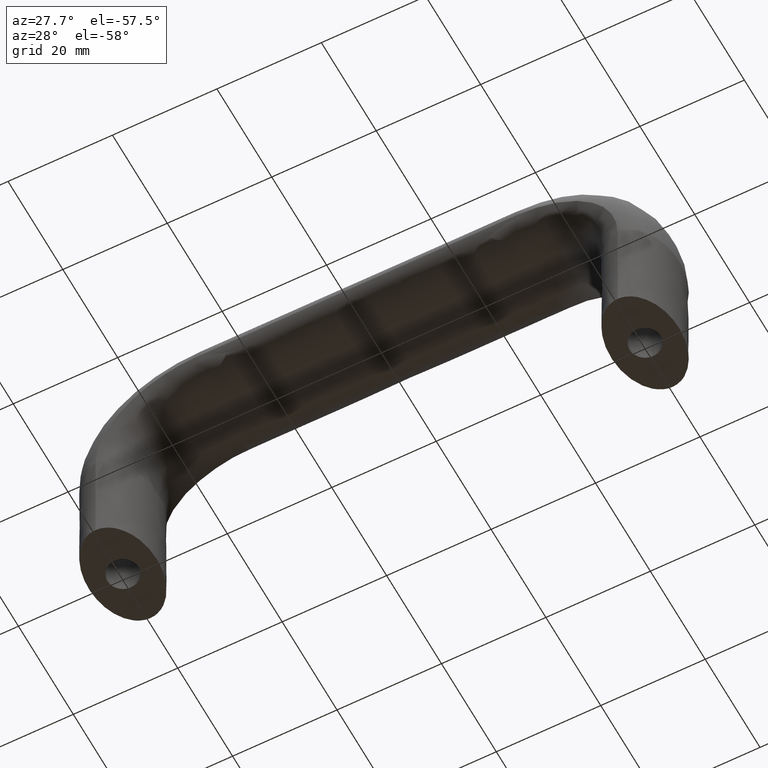
[diagram: clean part render]
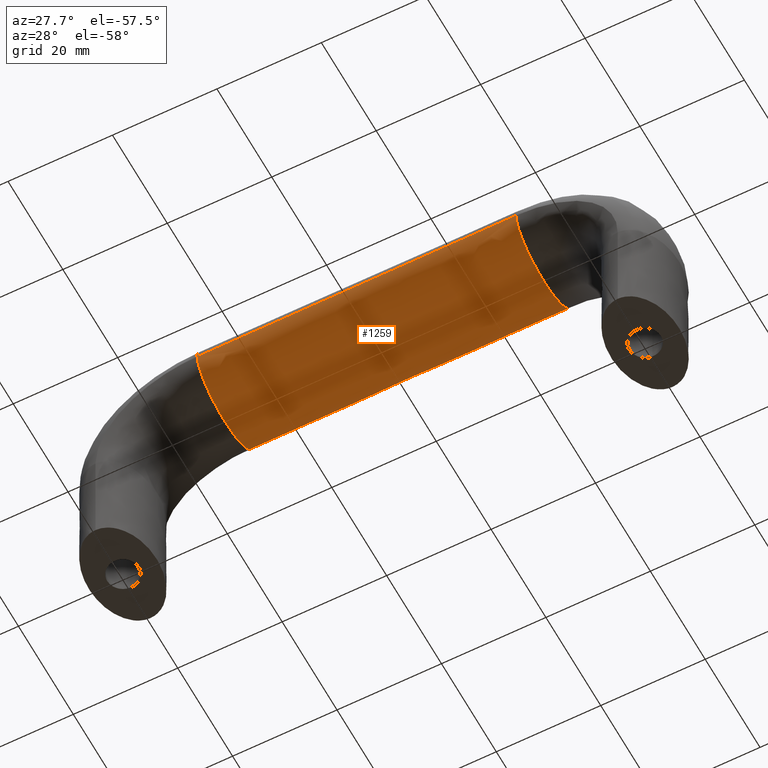
[diagram: same view with one face highlighted and labeled with its STEP entity id]
A machine part, auxiliary view. The second image highlights one B-rep face of the part: STEP entity #1259.
In plain terms, the highlighted face is a freeform B-spline surface patch.
Its self-contained STEP definition (entity closure, byte-faithful):
#750=CARTESIAN_POINT('',(80.500006999999997,8.755444309278111,37.370789168315817));
#751=VERTEX_POINT('',#750);
#765=CARTESIAN_POINT('',(80.500006999999997,10.0,40.500007999999831));
#766=VERTEX_POINT('',#765);
#767=CARTESIAN_POINT('',(80.500006999999997,8.755444309278111,37.370789168315817));
#768=CARTESIAN_POINT('',(80.500006999999997,9.558561397071312,38.326128189762443));
#769=CARTESIAN_POINT('',(80.500006999999997,10.0,39.410922043959332));
#770=CARTESIAN_POINT('',(80.500006999999997,10.0,40.500007999999831));
#771=B_SPLINE_CURVE_WITH_KNOTS('',3,(#767,#768,#769,#770),.UNSPECIFIED.,.F.,.U.,(4,4),(0.419999999989626,0.500000000000000),.UNSPECIFIED.);
#772=EDGE_CURVE('',#751,#766,#771,.T.);
#774=CARTESIAN_POINT('',(80.500006999999997,9.039509780698346,43.265142615306893));
#775=VERTEX_POINT('',#774);
#776=CARTESIAN_POINT('',(80.500006999999997,10.0,40.500007999999831));
#777=CARTESIAN_POINT('',(80.500006999999997,10.0,41.452955137659607));
#778=CARTESIAN_POINT('',(80.500006999999997,9.662025750010745,42.402616156045127));
#779=CARTESIAN_POINT('',(80.500006999999997,9.039509780698346,43.265142615306893));
#780=B_SPLINE_CURVE_WITH_KNOTS('',3,(#776,#777,#778,#779),.UNSPECIFIED.,.F.,.U.,(4,4),(0.500000000000000,0.569999774214178),.UNSPECIFIED.);
#781=EDGE_CURVE('',#766,#775,#780,.T.);
#783=CARTESIAN_POINT('',(80.500006999999997,-10.0,40.500007999999831));
#784=VERTEX_POINT('',#783);
#899=CARTESIAN_POINT('',(80.500006999999997,-10.0,40.500007999999831));
#900=CARTESIAN_POINT('',(80.500006999999997,-10.0,38.798311193907203));
#901=CARTESIAN_POINT('',(80.500006999999997,-8.922269036098131,37.107093152078512));
#902=CARTESIAN_POINT('',(80.500006999999997,-5.219866587632820,34.700530449855350));
#903=CARTESIAN_POINT('',(80.500006999999997,-2.617993877991495,34.000004999999852));
#904=CARTESIAN_POINT('',(80.500006999999997,2.617993877991495,34.000004999999852));
#905=CARTESIAN_POINT('',(80.500006999999997,5.219866587632830,34.700530449855350));
#906=CARTESIAN_POINT('',(80.500006999999997,7.737500252435606,36.336993087267238));
#907=CARTESIAN_POINT('',(80.500006999999997,8.303690947313079,36.833410968655329));
#908=CARTESIAN_POINT('',(80.500006999999997,8.755444309278111,37.370789168315817));
#909=B_SPLINE_CURVE_WITH_KNOTS('',3,(#899,#900,#901,#902,#903,#904,#905,#906,#907,#908),.UNSPECIFIED.,.F.,.U.,(4,2,2,2,4),(0.0,0.125000000000000,0.250000000000000,0.375000000000000,0.419999999989626),.UNSPECIFIED.);
#910=EDGE_CURVE('',#784,#751,#909,.T.);
#998=CARTESIAN_POINT('',(19.500000000000000,9.039509780698342,43.265134615307048));
#999=VERTEX_POINT('',#998);
#1000=CARTESIAN_POINT('',(19.500000000000000,9.039509780698342,43.265134615307048));
#1001=CARTESIAN_POINT('',(22.041631149356210,9.039509780698342,43.274675412277858));
#1002=CARTESIAN_POINT('',(24.583333916670899,9.039509780698342,43.265142615306893));
#1003=CARTESIAN_POINT('',(29.666667833329100,9.039509780698342,43.265142615306893));
#1004=CARTESIAN_POINT('',(32.208334791662097,9.039509780698342,43.265142615306893));
#1005=CARTESIAN_POINT('',(39.833335666675787,9.039509780698344,43.265142615306893));
#1006=CARTESIAN_POINT('',(44.916669583312100,9.039509780698344,43.265142615306893));
#1007=CARTESIAN_POINT('',(55.083337416687897,9.039509780698344,43.265142615306893));
#1008=CARTESIAN_POINT('',(60.166671333370502,9.039509780698344,43.265142615306893));
#1009=CARTESIAN_POINT('',(67.791672208314694,9.039509780698346,43.265142615306893));
#1010=CARTESIAN_POINT('',(70.333339166650006,9.039509780698346,43.265142615306893));
#1011=CARTESIAN_POINT('',(75.416673083349991,9.039509780698346,43.265142615306893));
#1012=CARTESIAN_POINT('',(77.958375904355847,9.039509780698346,43.274683412075753));
#1013=CARTESIAN_POINT('',(80.500006999999997,9.039509780698346,43.265142615306893));
#1014=B_SPLINE_CURVE_WITH_KNOTS('',3,(#1000,#1001,#1002,#1003,#1004,#1005,#1006,#1007,#1008,#1009,#1010,#1011,#1012,#1013),.UNSPECIFIED.,.F.,.U.,(4,2,2,2,2,2,4),(0.314319944090048,0.360739958067536,0.407159972045024,0.500000000000000,0.592840027954976,0.639260041932464,0.685680055909952),.UNSPECIFIED.);
#1015=EDGE_CURVE('',#999,#775,#1014,.T.);
#1017=CARTESIAN_POINT('',(19.500000000000000,-10.0,40.499999999999972));
#1018=VERTEX_POINT('',#1017);
#1032=CARTESIAN_POINT('',(19.500000000000000,-10.0,40.499999999999972));
#1033=CARTESIAN_POINT('',(22.041625856253820,-10.0,40.510218419205927));
#1034=CARTESIAN_POINT('',(24.583333916670899,-10.0,40.500007999999831));
#1035=CARTESIAN_POINT('',(29.666667833329100,-10.0,40.500007999999831));
#1036=CARTESIAN_POINT('',(32.208334791662097,-10.0,40.500007999999831));
#1037=CARTESIAN_POINT('',(39.833335666675787,-10.0,40.500007999999831));
#1038=CARTESIAN_POINT('',(44.916669583312100,-10.0,40.500007999999831));
#1039=CARTESIAN_POINT('',(55.083337416687897,-10.0,40.500007999999831));
#1040=CARTESIAN_POINT('',(60.166671333370502,-10.0,40.500007999999831));
#1041=CARTESIAN_POINT('',(67.791672208314694,-10.0,40.500007999999831));
#1042=CARTESIAN_POINT('',(70.333339166650006,-10.0,40.500007999999831));
#1043=CARTESIAN_POINT('',(75.416673083349991,-10.0,40.500007999999831));
#1044=CARTESIAN_POINT('',(77.958381201274108,-10.0,40.510226418973978));
#1045=CARTESIAN_POINT('',(80.500006999999997,-10.0,40.500007999999831));
#1046=B_SPLINE_CURVE_WITH_KNOTS('',3,(#1032,#1033,#1034,#1035,#1036,#1037,#1038,#1039,#1040,#1041,#1042,#1043,#1044,#1045),.UNSPECIFIED.,.F.,.U.,(4,2,2,2,2,2,4),(0.314319944090048,0.360739958067536,0.407159972045024,0.500000000000000,0.592840027954976,0.639260041932464,0.685680055909952),.UNSPECIFIED.);
#1047=EDGE_CURVE('',#1018,#784,#1046,.T.);
#1052=CARTESIAN_POINT('',(19.500000000000000,-10.0,40.499999999999972));
#1053=CARTESIAN_POINT('',(19.500000000000000,-10.0,38.798303193907351));
#1054=CARTESIAN_POINT('',(19.500000000000000,-8.922269036098131,37.107085152078703));
#1055=CARTESIAN_POINT('',(19.500000000000000,-5.219866587632820,34.700522449855512));
#1056=CARTESIAN_POINT('',(19.500000000000000,-2.617993877991495,33.999997000000000));
#1057=CARTESIAN_POINT('',(19.500000000000000,2.617993877991495,33.999997000000000));
#1058=CARTESIAN_POINT('',(19.500000000000000,5.219866587632830,34.700522449855512));
#1059=CARTESIAN_POINT('',(19.500000000000000,8.922269036098131,37.107085152078703));
#1060=CARTESIAN_POINT('',(19.500000000000000,10.0,38.798303193907351));
#1061=CARTESIAN_POINT('',(19.500000000000000,10.0,41.452950211411853));
#1062=CARTESIAN_POINT('',(19.500000000000000,9.662023569720375,42.402614282350541));
#1063=CARTESIAN_POINT('',(19.500000000000000,9.039503756879462,43.265142961604063));
#1064=CARTESIAN_POINT('',(22.041625856253820,-10.0,40.510218419205927));
#1065=CARTESIAN_POINT('',(22.041622296553701,-10.0,38.808964618051597));
#1066=CARTESIAN_POINT('',(22.041617977505549,-8.922269036098131,37.118249843992949));
#1067=CARTESIAN_POINT('',(22.041610659084348,-5.219866587632820,34.712491663684297));
#1068=CARTESIAN_POINT('',(22.041608217988049,-2.617993877991495,34.012222789342303));
#1069=CARTESIAN_POINT('',(22.041608217988149,2.617993877991495,34.012222789331737));
#1070=CARTESIAN_POINT('',(22.041610659084348,5.219866587632830,34.712491663684297));
#1071=CARTESIAN_POINT('',(22.041617977505549,8.922269036098131,37.118249843992949));
#1072=CARTESIAN_POINT('',(22.041622296553751,10.0,38.808964618042353));
#1073=CARTESIAN_POINT('',(22.041627849685948,10.0,41.462920547843723));
#1074=CARTESIAN_POINT('',(22.041629642054009,9.662023569720375,42.412353983593583));
#1075=CARTESIAN_POINT('',(22.041631149356210,9.039503756879462,43.274683758574866));
#1076=CARTESIAN_POINT('',(24.583333916670899,-10.0,40.500007999999831));
#1077=CARTESIAN_POINT('',(24.583333916670899,-10.0,38.798311193907203));
#1078=CARTESIAN_POINT('',(24.583333916670899,-8.922269036098131,37.107093152078512));
#1079=CARTESIAN_POINT('',(24.583333916670899,-5.219866587632820,34.700530449855350));
#1080=CARTESIAN_POINT('',(24.583333916670899,-2.617993877991495,34.000004999999852));
#1081=CARTESIAN_POINT('',(24.583333916670899,2.617993877991495,34.000004999999852));
#1082=CARTESIAN_POINT('',(24.583333916670899,5.219866587632830,34.700530449855350));
#1083=CARTESIAN_POINT('',(24.583333916670899,8.922269036098131,37.107093152078512));
#1084=CARTESIAN_POINT('',(24.583333916670899,10.0,38.798311193907203));
#1085=CARTESIAN_POINT('',(24.583333916670899,10.0,41.452958211411698));
#1086=CARTESIAN_POINT('',(24.583333916670899,9.662023569720375,42.402622282350379));
#1087=CARTESIAN_POINT('',(24.583333916670899,9.039503756879462,43.265150961603887));
#1088=CARTESIAN_POINT('',(29.666667833329100,-10.0,40.500007999999831));
#1089=CARTESIAN_POINT('',(29.666667833329100,-10.0,38.798311193907203));
#1090=CARTESIAN_POINT('',(29.666667833329100,-8.922269036098131,37.107093152078512));
#1091=CARTESIAN_POINT('',(29.666667833329100,-5.219866587632820,34.700530449855350));
#1092=CARTESIAN_POINT('',(29.666667833329100,-2.617993877991495,34.000004999999852));
#1093=CARTESIAN_POINT('',(29.666667833329100,2.617993877991495,34.000004999999852));
#1094=CARTESIAN_POINT('',(29.666667833329100,5.219866587632830,34.700530449855350));
#1095=CARTESIAN_POINT('',(29.666667833329100,8.922269036098131,37.107093152078512));
#1096=CARTESIAN_POINT('',(29.666667833329100,10.0,38.798311193907203));
#1097=CARTESIAN_POINT('',(29.666667833329100,10.0,41.452958211411698));
#1098=CARTESIAN_POINT('',(29.666667833329100,9.662023569720375,42.402622282350379));
#1099=CARTESIAN_POINT('',(29.666667833329100,9.039503756879462,43.265150961603887));
#1100=CARTESIAN_POINT('',(32.208334791662097,-10.0,40.500007999999831));
#1101=CARTESIAN_POINT('',(32.208334791662097,-10.0,38.798311193907203));
#1102=CARTESIAN_POINT('',(32.208334791662097,-8.922269036098131,37.107093152078512));
#1103=CARTESIAN_POINT('',(32.208334791662097,-5.219866587632820,34.700530449855350));
#1104=CARTESIAN_POINT('',(32.208334791662097,-2.617993877991495,34.000004999999852));
#1105=CARTESIAN_POINT('',(32.208334791662097,2.617993877991495,34.000004999999852));
#1106=CARTESIAN_POINT('',(32.208334791662097,5.219866587632830,34.700530449855350));
#1107=CARTESIAN_POINT('',(32.208334791662097,8.922269036098131,37.107093152078512));
#1108=CARTESIAN_POINT('',(32.208334791662097,10.0,38.798311193907203));
#1109=CARTESIAN_POINT('',(32.208334791662097,10.0,41.452958211411698));
#1110=CARTESIAN_POINT('',(32.208334791662097,9.662023569720375,42.402622282350379));
#1111=CARTESIAN_POINT('',(32.208334791662097,9.039503756879462,43.265150961603887));
#1112=CARTESIAN_POINT('',(39.833335666675787,-10.0,40.500007999999831));
#1113=CARTESIAN_POINT('',(39.833335666675787,-10.0,38.798311193907203));
#1114=CARTESIAN_POINT('',(39.833335666675787,-8.922269036098131,37.107093152078512));
#1115=CARTESIAN_POINT('',(39.833335666675787,-5.219866587632820,34.700530449855350));
#1116=CARTESIAN_POINT('',(39.833335666675787,-2.617993877991495,34.000004999999852));
#1117=CARTESIAN_POINT('',(39.833335666675787,2.617993877991495,34.000004999999852));
#1118=CARTESIAN_POINT('',(39.833335666675787,5.219866587632830,34.700530449855350));
#1119=CARTESIAN_POINT('',(39.833335666675787,8.922269036098131,37.107093152078512));
#1120=CARTESIAN_POINT('',(39.833335666675787,10.0,38.798311193907203));
#1121=CARTESIAN_POINT('',(39.833335666675787,10.0,41.452958211411698));
#1122=CARTESIAN_POINT('',(39.833335666675787,9.662023569720375,42.402622282350379));
#1123=CARTESIAN_POINT('',(39.833335666675787,9.039503756879462,43.265150961603887));
#1124=CARTESIAN_POINT('',(44.916669583312100,-10.0,40.500007999999831));
#1125=CARTESIAN_POINT('',(44.916669583312100,-10.0,38.798311193907203));
#1126=CARTESIAN_POINT('',(44.916669583312100,-8.922269036098131,37.107093152078512));
#1127=CARTESIAN_POINT('',(44.916669583312100,-5.219866587632820,34.700530449855350));
#1128=CARTESIAN_POINT('',(44.916669583312100,-2.617993877991495,34.000004999999852));
#1129=CARTESIAN_POINT('',(44.916669583312100,2.617993877991495,34.000004999999852));
#1130=CARTESIAN_POINT('',(44.916669583312100,5.219866587632830,34.700530449855350));
#1131=CARTESIAN_POINT('',(44.916669583312100,8.922269036098131,37.107093152078512));
#1132=CARTESIAN_POINT('',(44.916669583312100,10.0,38.798311193907203));
#1133=CARTESIAN_POINT('',(44.916669583312100,10.0,41.452958211411698));
#1134=CARTESIAN_POINT('',(44.916669583312100,9.662023569720375,42.402622282350379));
#1135=CARTESIAN_POINT('',(44.916669583312100,9.039503756879462,43.265150961603887));
#1136=CARTESIAN_POINT('',(55.083337416687897,-10.0,40.500007999999831));
#1137=CARTESIAN_POINT('',(55.083337416687897,-10.0,38.798311193907203));
#1138=CARTESIAN_POINT('',(55.083337416687897,-8.922269036098131,37.107093152078512));
#1139=CARTESIAN_POINT('',(55.083337416687897,-5.219866587632820,34.700530449855350));
#1140=CARTESIAN_POINT('',(55.083337416687897,-2.617993877991495,34.000004999999852));
#1141=CARTESIAN_POINT('',(55.083337416687897,2.617993877991495,34.000004999999852));
#1142=CARTESIAN_POINT('',(55.083337416687897,5.219866587632830,34.700530449855350));
#1143=CARTESIAN_POINT('',(55.083337416687897,8.922269036098131,37.107093152078512));
#1144=CARTESIAN_POINT('',(55.083337416687897,10.0,38.798311193907203));
#1145=CARTESIAN_POINT('',(55.083337416687897,10.0,41.452958211411698));
#1146=CARTESIAN_POINT('',(55.083337416687897,9.662023569720375,42.402622282350379));
#1147=CARTESIAN_POINT('',(55.083337416687897,9.039503756879462,43.265150961603887));
#1148=CARTESIAN_POINT('',(60.166671333370502,-10.0,40.500007999999831));
#1149=CARTESIAN_POINT('',(60.166671333370502,-10.0,38.798311193907203));
#1150=CARTESIAN_POINT('',(60.166671333370502,-8.922269036098131,37.107093152078512));
#1151=CARTESIAN_POINT('',(60.166671333370502,-5.219866587632820,34.700530449855350));
#1152=CARTESIAN_POINT('',(60.166671333370502,-2.617993877991495,34.000004999999852));
#1153=CARTESIAN_POINT('',(60.166671333370502,2.617993877991495,34.000004999999852));
#1154=CARTESIAN_POINT('',(60.166671333370502,5.219866587632830,34.700530449855350));
#1155=CARTESIAN_POINT('',(60.166671333370502,8.922269036098131,37.107093152078512));
#1156=CARTESIAN_POINT('',(60.166671333370502,10.0,38.798311193907203));
#1157=CARTESIAN_POINT('',(60.166671333370502,10.0,41.452958211411698));
#1158=CARTESIAN_POINT('',(60.166671333370502,9.662023569720375,42.402622282350379));
#1159=CARTESIAN_POINT('',(60.166671333370502,9.039503756879462,43.265150961603887));
#1160=CARTESIAN_POINT('',(67.791672208314694,-10.0,40.500007999999831));
#1161=CARTESIAN_POINT('',(67.791672208314694,-10.0,38.798311193907203));
#1162=CARTESIAN_POINT('',(67.791672208314694,-8.922269036098131,37.107093152078512));
#1163=CARTESIAN_POINT('',(67.791672208314694,-5.219866587632820,34.700530449855350));
#1164=CARTESIAN_POINT('',(67.791672208314694,-2.617993877991495,34.000004999999852));
#1165=CARTESIAN_POINT('',(67.791672208314694,2.617993877991495,34.000004999999852));
#1166=CARTESIAN_POINT('',(67.791672208314694,5.219866587632830,34.700530449855350));
#1167=CARTESIAN_POINT('',(67.791672208314694,8.922269036098131,37.107093152078512));
#1168=CARTESIAN_POINT('',(67.791672208314694,10.0,38.798311193907203));
#1169=CARTESIAN_POINT('',(67.791672208314694,10.0,41.452958211411698));
#1170=CARTESIAN_POINT('',(67.791672208314694,9.662023569720375,42.402622282350379));
#1171=CARTESIAN_POINT('',(67.791672208314694,9.039503756879462,43.265150961603887));
#1172=CARTESIAN_POINT('',(70.333339166650006,-10.0,40.500007999999831));
#1173=CARTESIAN_POINT('',(70.333339166650006,-10.0,38.798311193907203));
#1174=CARTESIAN_POINT('',(70.333339166650006,-8.922269036098131,37.107093152078512));
#1175=CARTESIAN_POINT('',(70.333339166650006,-5.219866587632820,34.700530449855350));
#1176=CARTESIAN_POINT('',(70.333339166650006,-2.617993877991495,34.000004999999852));
#1177=CARTESIAN_POINT('',(70.333339166650006,2.617993877991495,34.000004999999852));
#1178=CARTESIAN_POINT('',(70.333339166650006,5.219866587632830,34.700530449855350));
#1179=CARTESIAN_POINT('',(70.333339166650006,8.922269036098131,37.107093152078512));
#1180=CARTESIAN_POINT('',(70.333339166650006,10.0,38.798311193907203));
#1181=CARTESIAN_POINT('',(70.333339166650006,10.0,41.452958211411698));
#1182=CARTESIAN_POINT('',(70.333339166650006,9.662023569720375,42.402622282350379));
#1183=CARTESIAN_POINT('',(70.333339166650006,9.039503756879462,43.265150961603887));
#1184=CARTESIAN_POINT('',(75.416673083349991,-10.0,40.500007999999831));
#1185=CARTESIAN_POINT('',(75.416673083349991,-10.0,38.798311193907203));
#1186=CARTESIAN_POINT('',(75.416673083349991,-8.922269036098131,37.107093152078512));
#1187=CARTESIAN_POINT('',(75.416673083349991,-5.219866587632820,34.700530449855350));
#1188=CARTESIAN_POINT('',(75.416673083349991,-2.617993877991495,34.000004999999852));
#1189=CARTESIAN_POINT('',(75.416673083349991,2.617993877991495,34.000004999999852));
#1190=CARTESIAN_POINT('',(75.416673083349991,5.219866587632830,34.700530449855350));
#1191=CARTESIAN_POINT('',(75.416673083349991,8.922269036098131,37.107093152078512));
#1192=CARTESIAN_POINT('',(75.416673083349991,10.0,38.798311193907203));
#1193=CARTESIAN_POINT('',(75.416673083349991,10.0,41.452958211411698));
#1194=CARTESIAN_POINT('',(75.416673083349991,9.662023569720375,42.402622282350379));
#1195=CARTESIAN_POINT('',(75.416673083349991,9.039503756879462,43.265150961603887));
#1196=CARTESIAN_POINT('',(77.958381201274108,-10.0,40.510226418973978));
#1197=CARTESIAN_POINT('',(77.958384763468985,-10.0,38.808972617799597));
#1198=CARTESIAN_POINT('',(77.958389085351300,-8.922269036098131,37.118257843716599));
#1199=CARTESIAN_POINT('',(77.958396408303003,-5.219866587632820,34.712499663366700));
#1200=CARTESIAN_POINT('',(77.958398850844290,-2.617993877991495,34.012230789010950));
#1201=CARTESIAN_POINT('',(77.958398850844105,2.617993877991495,34.012230789000348));
#1202=CARTESIAN_POINT('',(77.958396408303003,5.219866587632830,34.712499663366700));
#1203=CARTESIAN_POINT('',(77.958389085351300,8.922269036098131,37.118257843716599));
#1204=CARTESIAN_POINT('',(77.958384763468985,10.0,38.808972617790403));
#1205=CARTESIAN_POINT('',(77.958379206445031,10.0,41.462928547623008));
#1206=CARTESIAN_POINT('',(77.958377412778162,9.662023569720375,42.412361983382972));
#1207=CARTESIAN_POINT('',(77.958375904355833,9.039503756879462,43.274691758372761));
#1208=CARTESIAN_POINT('',(80.500006999999997,-10.0,40.500007999999831));
#1209=CARTESIAN_POINT('',(80.500006999999997,-10.0,38.798311193907203));
#1210=CARTESIAN_POINT('',(80.500006999999997,-8.922269036098131,37.107093152078512));
#1211=CARTESIAN_POINT('',(80.500006999999997,-5.219866587632820,34.700530449855350));
#1212=CARTESIAN_POINT('',(80.500006999999997,-2.617993877991495,34.000004999999852));
#1213=CARTESIAN_POINT('',(80.500006999999997,2.617993877991495,34.000004999999852));
#1214=CARTESIAN_POINT('',(80.500006999999997,5.219866587632830,34.700530449855350));
#1215=CARTESIAN_POINT('',(80.500006999999997,8.922269036098131,37.107093152078512));
#1216=CARTESIAN_POINT('',(80.500006999999997,10.0,38.798311193907203));
#1217=CARTESIAN_POINT('',(80.500006999999997,10.0,41.452958211411698));
#1218=CARTESIAN_POINT('',(80.500006999999997,9.662023569720375,42.402622282350379));
#1219=CARTESIAN_POINT('',(80.500006999999997,9.039503756879462,43.265150961603887));
#1220=B_SPLINE_SURFACE_WITH_KNOTS('',3,3,((#1052,#1064,#1076,#1088,#1100,#1112,#1124,#1136,#1148,#1160,#1172,#1184,#1196,#1208),(#1053,#1065,#1077,#1089,#1101,#1113,#1125,#1137,#1149,#1161,#1173,#1185,#1197,#1209),(#1054,#1066,#1078,#1090,#1102,#1114,#1126,#1138,#1150,#1162,#1174,#1186,#1198,#1210),(#1055,#1067,#1079,#1091,#1103,#1115,#1127,#1139,#1151,#1163,#1175,#1187,#1199,#1211),(#1056,#1068,#1080,#1092,#1104,#1116,#1128,#1140,#1152,#1164,#1176,#1188,#1200,#1212),(#1057,#1069,#1081,#1093,#1105,#1117,#1129,#1141,#1153,#1165,#1177,#1189,#1201,#1213),(#1058,#1070,#1082,#1094,#1106,#1118,#1130,#1142,#1154,#1166,#1178,#1190,#1202,#1214),(#1059,#1071,#1083,#1095,#1107,#1119,#1131,#1143,#1155,#1167,#1179,#1191,#1203,#1215),(#1060,#1072,#1084,#1096,#1108,#1120,#1132,#1144,#1156,#1168,#1180,#1192,#1204,#1216),(#1061,#1073,#1085,#1097,#1109,#1121,#1133,#1145,#1157,#1169,#1181,#1193,#1205,#1217),(#1062,#1074,#1086,#1098,#1110,#1122,#1134,#1146,#1158,#1170,#1182,#1194,#1206,#1218),(#1063,#1075,#1087,#1099,#1111,#1123,#1135,#1147,#1159,#1171,#1183,#1195,#1207,#1219)),.UNSPECIFIED.,.F.,.F.,.U.,(4,2,2,2,2,4),(4,2,2,2,2,2,4),(0.0,7.693621763635733,15.387243527271471,23.080865290907202,30.774487054542931,35.082915242178942),(0.0,7.625068586431425,15.250137172862850,30.500274345725721,45.750411518588592,53.375480105020010,61.000548691451442),.UNSPECIFIED.);
#1221=ORIENTED_EDGE('',*,*,#781,.F.);
#1222=ORIENTED_EDGE('',*,*,#772,.F.);
#1223=ORIENTED_EDGE('',*,*,#910,.F.);
#1224=ORIENTED_EDGE('',*,*,#1047,.F.);
#1225=CARTESIAN_POINT('',(19.500000000000000,8.755444309278113,37.370781168316007));
#1226=VERTEX_POINT('',#1225);
#1227=CARTESIAN_POINT('',(19.500000000000000,-10.0,40.499999999999972));
#1228=CARTESIAN_POINT('',(19.500000000000000,-10.0,38.798303193907351));
#1229=CARTESIAN_POINT('',(19.500000000000000,-8.922269036098131,37.107085152078703));
#1230=CARTESIAN_POINT('',(19.500000000000000,-5.219866587632820,34.700522449855512));
#1231=CARTESIAN_POINT('',(19.500000000000000,-2.617993877991495,33.999997000000000));
#1232=CARTESIAN_POINT('',(19.500000000000000,2.617993877991495,33.999997000000000));
#1233=CARTESIAN_POINT('',(19.500000000000000,5.219866587632830,34.700522449855512));
#1234=CARTESIAN_POINT('',(19.500000000000000,7.737500252435607,36.336985087267422));
#1235=CARTESIAN_POINT('',(19.500000000000000,8.303690947313079,36.833402968655513));
#1236=CARTESIAN_POINT('',(19.500000000000000,8.755444309278113,37.370781168316007));
#1237=B_SPLINE_CURVE_WITH_KNOTS('',3,(#1227,#1228,#1229,#1230,#1231,#1232,#1233,#1234,#1235,#1236),.UNSPECIFIED.,.F.,.U.,(4,2,2,2,4),(0.0,0.125000000000000,0.250000000000000,0.375000000000000,0.419999999989627),.UNSPECIFIED.);
#1238=EDGE_CURVE('',#1018,#1226,#1237,.T.);
#1239=ORIENTED_EDGE('',*,*,#1238,.T.);
#1240=CARTESIAN_POINT('',(19.500000000000000,10.0,40.499999999999972));
#1241=VERTEX_POINT('',#1240);
#1242=CARTESIAN_POINT('',(19.500000000000000,8.755444309278113,37.370781168316007));
#1243=CARTESIAN_POINT('',(19.500000000000000,9.558561397071312,38.326120189762612));
#1244=CARTESIAN_POINT('',(19.500000000000000,10.0,39.410914043959473));
#1245=CARTESIAN_POINT('',(19.500000000000000,10.0,40.499999999999972));
#1246=B_SPLINE_CURVE_WITH_KNOTS('',3,(#1242,#1243,#1244,#1245),.UNSPECIFIED.,.F.,.U.,(4,4),(0.419999999989627,0.500000000000000),.UNSPECIFIED.);
#1247=EDGE_CURVE('',#1226,#1241,#1246,.T.);
#1248=ORIENTED_EDGE('',*,*,#1247,.T.);
#1249=CARTESIAN_POINT('',(19.500000000000000,10.0,40.499999999999972));
#1250=CARTESIAN_POINT('',(19.500000000000000,10.0,41.452947137659748));
#1251=CARTESIAN_POINT('',(19.500000000000000,9.662025750010745,42.402608156045282));
#1252=CARTESIAN_POINT('',(19.500000000000000,9.039509780698342,43.265134615307048));
#1253=B_SPLINE_CURVE_WITH_KNOTS('',3,(#1249,#1250,#1251,#1252),.UNSPECIFIED.,.F.,.U.,(4,4),(0.500000000000000,0.569999774214178),.UNSPECIFIED.);
#1254=EDGE_CURVE('',#1241,#999,#1253,.T.);
#1255=ORIENTED_EDGE('',*,*,#1254,.T.);
#1256=ORIENTED_EDGE('',*,*,#1015,.T.);
#1257=EDGE_LOOP('',(#1221,#1222,#1223,#1224,#1239,#1248,#1255,#1256));
#1258=FACE_OUTER_BOUND('',#1257,.T.);
#1259=ADVANCED_FACE('',(#1258),#1220,.T.);